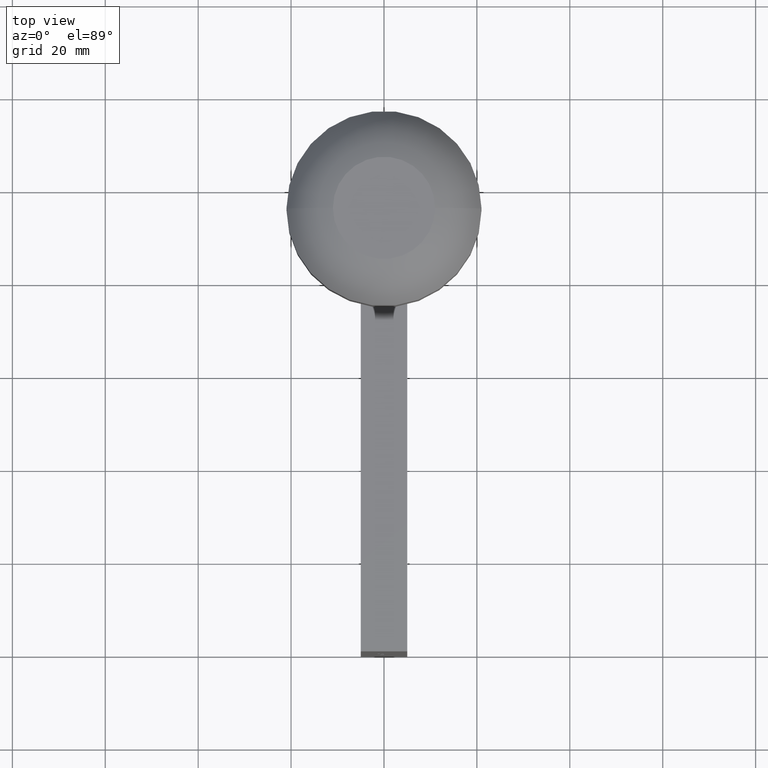
[diagram: clean part render]
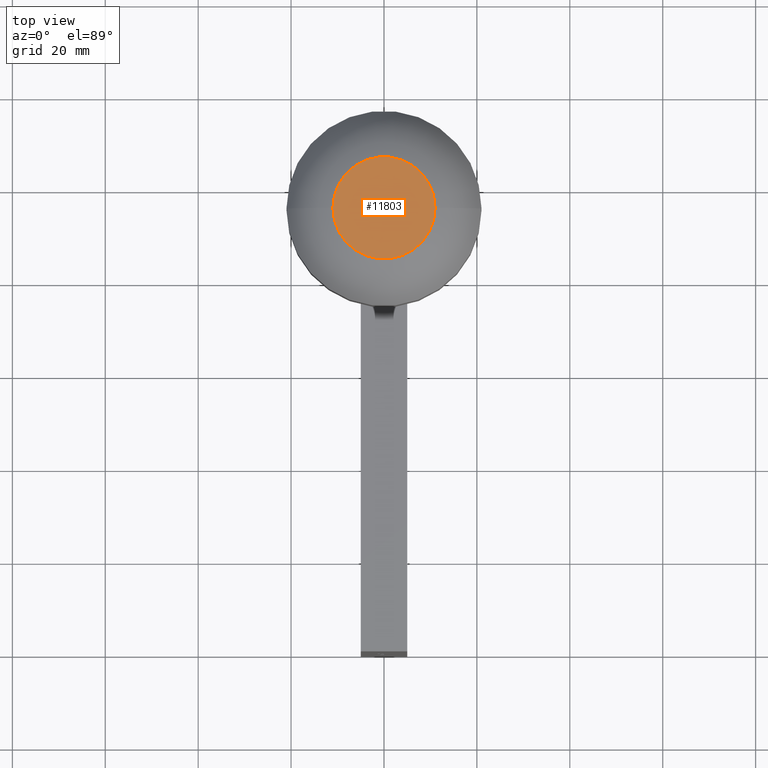
[diagram: same view with one face highlighted and labeled with its STEP entity id]
A machine part, top view. The second image highlights one B-rep face of the part: STEP entity #11803.
In plain terms, the highlighted planar face has unit normal (0, 0, -1).
Its self-contained STEP definition (entity closure, byte-faithful):
#1248 = CIRCLE ( 'NONE', #11775, 11.00000000000000178 ) ;
#1303 = DIRECTION ( 'NONE',  ( 1.000000000000000000, 0.000000000000000000, 0.000000000000000000 ) ) ;
#1678 = CIRCLE ( 'NONE', #4608, 11.00000000000000178 ) ;
#1801 = DIRECTION ( 'NONE',  ( -0.000000000000000000, -0.000000000000000000, 1.000000000000000000 ) ) ;
#1957 = DIRECTION ( 'NONE',  ( 1.000000000000000000, 0.000000000000000000, 0.000000000000000000 ) ) ;
#2823 = EDGE_LOOP ( 'NONE', ( #6561, #6334 ) ) ;
#3113 = CARTESIAN_POINT ( 'NONE',  ( 0.000000000000000000, 0.000000000000000000, 0.000000000000000000 ) ) ;
#3353 = CARTESIAN_POINT ( 'NONE',  ( -11.00000000000000178, 1.959434878635765526E-15, 0.000000000000000000 ) ) ;
#3734 = PLANE ( 'NONE',  #7423 ) ;
#3850 = DIRECTION ( 'NONE',  ( -1.000000000000000000, 0.000000000000000000, -0.000000000000000000 ) ) ;
#4608 = AXIS2_PLACEMENT_3D ( 'NONE', #4747, #1801, #1957 ) ;
#4747 = CARTESIAN_POINT ( 'NONE',  ( 0.000000000000000000, 0.000000000000000000, 0.000000000000000000 ) ) ;
#6334 = ORIENTED_EDGE ( 'NONE', *, *, #9418, .T. ) ;
#6561 = ORIENTED_EDGE ( 'NONE', *, *, #6996, .T. ) ;
#6591 = DIRECTION ( 'NONE',  ( 0.000000000000000000, 0.000000000000000000, -1.000000000000000000 ) ) ;
#6996 = EDGE_CURVE ( 'NONE', #9310, #10707, #1248, .T. ) ;
#7423 = AXIS2_PLACEMENT_3D ( 'NONE', #10292, #6591, #3850 ) ;
#8795 = DIRECTION ( 'NONE',  ( -0.000000000000000000, -0.000000000000000000, 1.000000000000000000 ) ) ;
#9310 = VERTEX_POINT ( 'NONE', #12059 ) ;
#9418 = EDGE_CURVE ( 'NONE', #10707, #9310, #1678, .T. ) ;
#10292 = CARTESIAN_POINT ( 'NONE',  ( 0.000000000000000000, 0.000000000000000000, 0.000000000000000000 ) ) ;
#10707 = VERTEX_POINT ( 'NONE', #3353 ) ;
#10900 = FACE_OUTER_BOUND ( 'NONE', #2823, .T. ) ;
#11775 = AXIS2_PLACEMENT_3D ( 'NONE', #3113, #8795, #1303 ) ;
#11803 = ADVANCED_FACE ( 'NONE', ( #10900 ), #3734, .F. ) ;
#12059 = CARTESIAN_POINT ( 'NONE',  ( 11.00000000000000178, 0.000000000000000000, 0.000000000000000000 ) ) ;